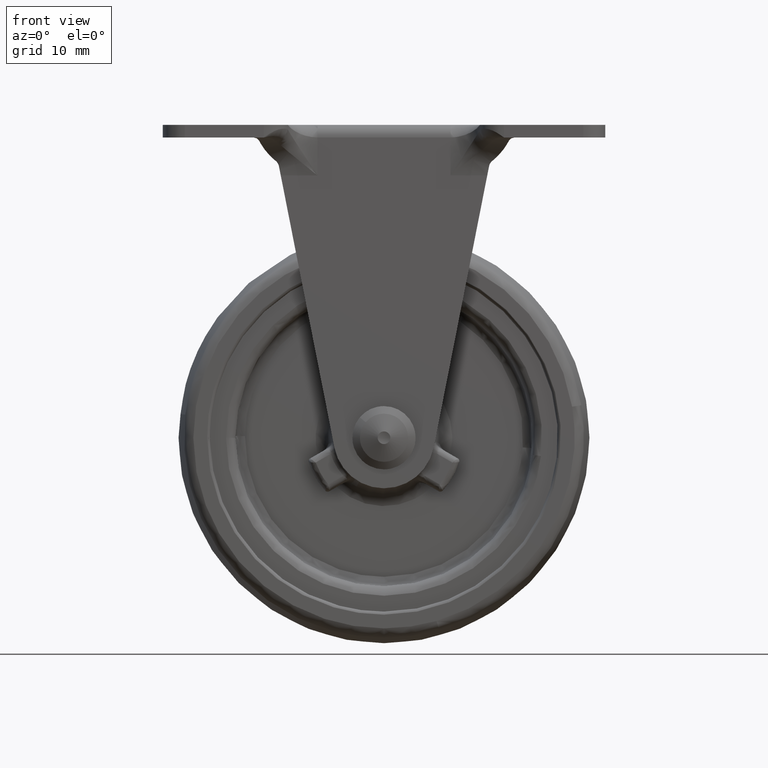
[diagram: clean part render]
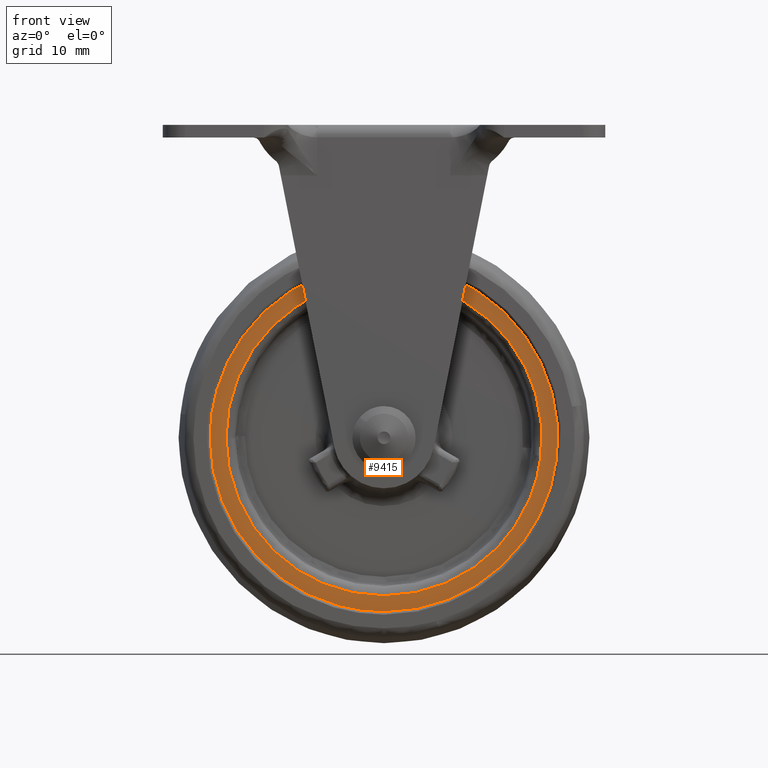
[diagram: same view with one face highlighted and labeled with its STEP entity id]
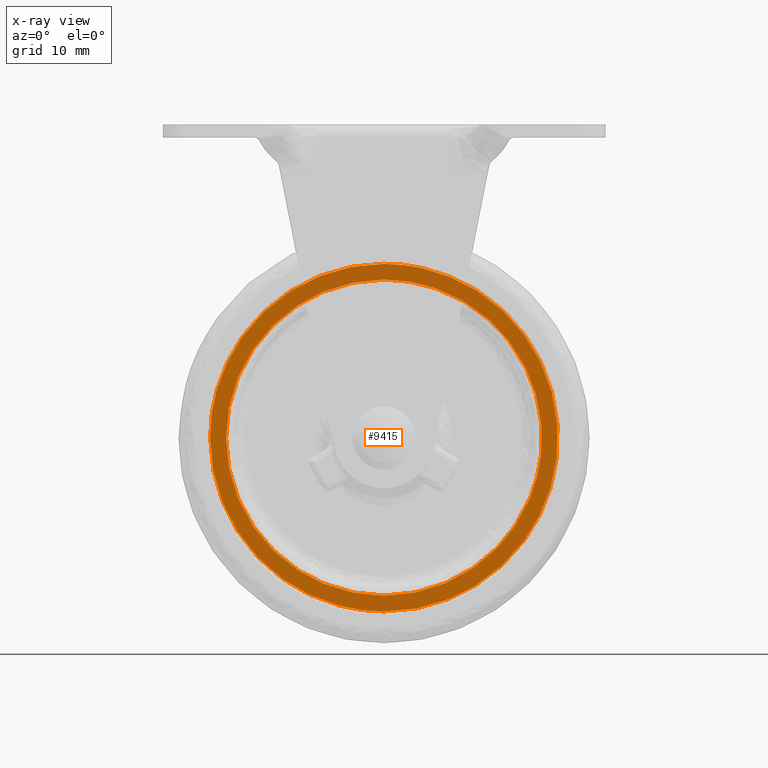
[diagram: x-ray of the same camera — body ghosted, the highlighted face saturated]
A machine part, front view. The second image highlights one B-rep face of the part: STEP entity #9415.
The next image is the same camera in x-ray: the body ghosted, the highlighted face saturated — about 0% of this face is hidden behind the body in this view.
In plain terms, the highlighted face is a freeform B-spline surface patch.
Its self-contained STEP definition (entity closure, byte-faithful):
#2925=CARTESIAN_POINT('',(-51.500002000000002,-10.000000005501560,-47.999996000000003));
#2926=VERTEX_POINT('',#2925);
#2936=CARTESIAN_POINT('',(-24.0,-10.0,-20.499994000000001));
#2937=VERTEX_POINT('',#2936);
#2938=CARTESIAN_POINT('',(-24.0,-10.0,-20.499994000000001));
#2939=CARTESIAN_POINT('',(-26.137397482328659,-9.999999999999881,-20.499465349640801));
#2940=CARTESIAN_POINT('',(-29.399410986405410,-10.000000000076509,-20.882371122145720));
#2941=CARTESIAN_POINT('',(-33.767380248586448,-10.000000000341570,-22.207447710920661));
#2942=CARTESIAN_POINT('',(-36.898896141957167,-10.000000000626210,-23.630187515247730));
#2943=CARTESIAN_POINT('',(-40.112136490016042,-10.000000001022400,-25.610098716940541));
#2944=CARTESIAN_POINT('',(-42.772767844416428,-10.000000001458970,-27.793598452929189));
#2945=CARTESIAN_POINT('',(-45.503407904580392,-10.000000002043709,-30.715057932653259));
#2946=CARTESIAN_POINT('',(-47.778907399541737,-10.000000002689850,-33.945907903825749));
#2947=CARTESIAN_POINT('',(-49.696680668128927,-10.000000003482279,-37.906131817103649));
#2948=CARTESIAN_POINT('',(-51.119246546958742,-10.000000004410129,-42.544295114987037));
#2949=CARTESIAN_POINT('',(-51.500398324272432,-10.000000005096039,-45.975112489243827));
#2950=CARTESIAN_POINT('',(-51.500002000000002,-10.000000005501560,-47.999996000000003));
#2951=B_SPLINE_CURVE_WITH_KNOTS('',3,(#2938,#2939,#2940,#2941,#2942,#2943,#2944,#2945,#2946,#2947,#2948,#2949,#2950),.UNSPECIFIED.,.F.,.U.,(4,1,1,1,1,1,1,1,1,1,4),(0.000000073404337,6.412032767958017,9.786808720742151,13.667807479643240,16.705110898872451,21.092280727205878,23.960775775652792,28.685484471950531,32.903944976721178,37.122421256941472,43.196969891855353),.UNSPECIFIED.);
#2952=EDGE_CURVE('',#2937,#2926,#2951,.T.);
#2954=CARTESIAN_POINT('',(3.316072053205797,-10.000000005374760,-51.175262537485153));
#2955=VERTEX_POINT('',#2954);
#2956=CARTESIAN_POINT('',(3.316072053205797,-10.000000005374760,-51.175262537485153));
#2957=CARTESIAN_POINT('',(3.497478621960052,-10.000000004899910,-49.615650331843760));
#2958=CARTESIAN_POINT('',(3.590274623730488,-10.000000003993300,-46.525874889619423));
#2959=CARTESIAN_POINT('',(2.965560020626035,-10.000000002770230,-42.024400220717951));
#2960=CARTESIAN_POINT('',(1.590129603788719,-10.000000001656110,-37.567197884846770));
#2961=CARTESIAN_POINT('',(-0.444770053546574,-10.000000000759410,-33.567163981659817));
#2962=CARTESIAN_POINT('',(-2.888215282569215,-10.000000000113291,-30.253285798233609));
#2963=CARTESIAN_POINT('',(-5.239425804978747,-9.999999999709170,-27.814308237902399));
#2964=CARTESIAN_POINT('',(-7.987161783389307,-9.999999999402920,-25.538314579531239));
#2965=CARTESIAN_POINT('',(-11.125350922392350,-9.999999999240348,-23.585318439655872));
#2966=CARTESIAN_POINT('',(-14.402394712182019,-9.999999999250496,-22.167127835024498));
#2967=CARTESIAN_POINT('',(-17.466692511972269,-9.999999999372763,-21.231099767434358));
#2968=CARTESIAN_POINT('',(-20.557808284590070,-9.999999999600096,-20.643818264969440));
#2969=CARTESIAN_POINT('',(-22.852599892679208,-9.999999999852095,-20.499956066519079));
#2970=CARTESIAN_POINT('',(-24.0,-10.0,-20.499994000000001));
#2971=B_SPLINE_CURVE_WITH_KNOTS('',3,(#2956,#2957,#2958,#2959,#2960,#2961,#2962,#2963,#2964,#2965,#2966,#2967,#2968,#2969,#2970),.UNSPECIFIED.,.F.,.U.,(4,1,1,1,1,1,1,1,1,1,1,1,4),(0.000000084040359,4.710367094827191,9.239625049476949,13.587711710694469,18.660476503279561,22.646206701214069,25.907215037368431,28.805892849353452,33.335151310525987,36.958557006131841,39.494941211140890,42.937148881141397,46.379350639581382),.UNSPECIFIED.);
#2972=EDGE_CURVE('',#2955,#2937,#2971,.T.);
#3028=CARTESIAN_POINT('',(-24.0,-10.0,-75.499998000000005));
#3029=VERTEX_POINT('',#3028);
#3030=CARTESIAN_POINT('',(-24.0,-10.0,-75.499998000000005));
#3031=CARTESIAN_POINT('',(-22.124293818773921,-9.999999999999920,-75.500301913847963));
#3032=CARTESIAN_POINT('',(-19.154598132383640,-10.000000000067470,-75.194890880498974));
#3033=CARTESIAN_POINT('',(-15.073591801091530,-10.000000000311379,-74.090412529884546));
#3034=CARTESIAN_POINT('',(-11.888521931764901,-10.000000000602730,-72.773022751805939));
#3035=CARTESIAN_POINT('',(-8.627354302229184,-10.000000001015250,-70.905495695127556));
#3036=CARTESIAN_POINT('',(-5.688379415504121,-10.000000001515041,-68.641065131890144));
#3037=CARTESIAN_POINT('',(-2.773895333047190,-10.000000002177000,-65.648734132358172));
#3038=CARTESIAN_POINT('',(-0.581452931131747,-10.000000002853080,-62.587945433253772));
#3039=CARTESIAN_POINT('',(1.257964511481682,-10.000000003629150,-59.074766014270210));
#3040=CARTESIAN_POINT('',(2.589719885523183,-10.000000004431600,-55.444403949233418));
#3041=CARTESIAN_POINT('',(3.147720787331664,-10.000000005054520,-52.624374779154628));
#3042=CARTESIAN_POINT('',(3.316072053205797,-10.000000005374760,-51.175262537485153));
#3043=B_SPLINE_CURVE_WITH_KNOTS('',3,(#3030,#3031,#3032,#3033,#3034,#3035,#3036,#3037,#3038,#3039,#3040,#3041,#3042),.UNSPECIFIED.,.F.,.U.,(4,1,1,1,1,1,1,1,1,1,4),(0.000000065958695,5.627039116920685,8.909497691721171,12.660876840559240,15.943338960415261,20.163555451565429,23.758660660305939,28.447865444376109,31.417706767906790,35.638025351000778,40.014591350734591),.UNSPECIFIED.);
#3044=EDGE_CURVE('',#3029,#2955,#3043,.T.);
#3046=CARTESIAN_POINT('',(-51.500002000000002,-10.000000005501560,-47.999996000000003));
#3047=CARTESIAN_POINT('',(-51.500510731103823,-10.000000005073970,-50.137390160058061));
#3048=CARTESIAN_POINT('',(-51.078063945411976,-10.000000004353840,-53.736873163052742));
#3049=CARTESIAN_POINT('',(-49.532094066393597,-10.000000003398020,-58.514862406601623));
#3050=CARTESIAN_POINT('',(-47.822318947225753,-10.000000002723629,-61.885612494817110));
#3051=CARTESIAN_POINT('',(-45.896328127610673,-10.000000002154650,-64.730049920030964));
#3052=CARTESIAN_POINT('',(-43.959459916754142,-10.000000001699521,-67.003481377648868));
#3053=CARTESIAN_POINT('',(-41.408369734960210,-10.000000001222910,-69.388006109226239));
#3054=CARTESIAN_POINT('',(-38.842456234880231,-10.000000000854049,-71.230705276733005));
#3055=CARTESIAN_POINT('',(-35.932469070013703,-10.000000000533710,-72.832276312873589));
#3056=CARTESIAN_POINT('',(-33.076378323327312,-10.000000000292861,-74.035915274056876));
#3057=CARTESIAN_POINT('',(-29.005775990769958,-10.000000000064770,-75.175978886348929));
#3058=CARTESIAN_POINT('',(-25.912380891226860,-10.000000000000080,-75.500264035095967));
#3059=CARTESIAN_POINT('',(-24.0,-10.0,-75.499998000000005));
#3060=B_SPLINE_CURVE_WITH_KNOTS('',3,(#3046,#3047,#3048,#3049,#3050,#3051,#3052,#3053,#3054,#3055,#3056,#3057,#3058,#3059),.UNSPECIFIED.,.F.,.U.,(4,1,1,1,1,1,1,1,1,1,1,4),(0.000000073350776,6.412032767915129,10.799243282101999,15.017709314609000,17.717545015963339,21.092280727187280,23.960775775639561,28.179267547260501,30.541599854912540,33.916378297669873,37.459890435712467,43.196969891855403),.UNSPECIFIED.);
#3061=EDGE_CURVE('',#2926,#3029,#3060,.T.);
#3113=CARTESIAN_POINT('',(0.832790967559408,-10.0,-50.886601732921037));
#3114=VERTEX_POINT('',#3113);
#3115=CARTESIAN_POINT('',(-24.0,-10.0,-22.999995999999999));
#3116=VERTEX_POINT('',#3115);
#3117=CARTESIAN_POINT('',(0.832790967559408,-10.0,-50.886601732921037));
#3118=CARTESIAN_POINT('',(1.048675552136203,-10.000000000000030,-49.032503462439152));
#3119=CARTESIAN_POINT('',(1.058789850153089,-9.999999999999979,-46.159863066253763));
#3120=CARTESIAN_POINT('',(0.370807037391836,-10.000000000000030,-42.092888432667820));
#3121=CARTESIAN_POINT('',(-0.564432587348556,-9.999999999999963,-39.097216180598707));
#3122=CARTESIAN_POINT('',(-1.873889809161206,-10.000000000000069,-36.250271174657897));
#3123=CARTESIAN_POINT('',(-3.635838842626883,-9.999999999999966,-33.331014241259453));
#3124=CARTESIAN_POINT('',(-5.964904227001126,-10.000000000000160,-30.535262555031920));
#3125=CARTESIAN_POINT('',(-8.575302318448067,-9.999999999999981,-28.254842493104761));
#3126=CARTESIAN_POINT('',(-11.337277301175799,-9.999999999999989,-26.353773459052960));
#3127=CARTESIAN_POINT('',(-14.583322762171409,-10.000000000000011,-24.714050790972721));
#3128=CARTESIAN_POINT('',(-19.004234159261671,-9.999999999999998,-23.347676817264009));
#3129=CARTESIAN_POINT('',(-22.188294387147231,-10.0,-22.999688976607882));
#3130=CARTESIAN_POINT('',(-24.0,-10.0,-22.999995999999999));
#3131=B_SPLINE_CURVE_WITH_KNOTS('',3,(#3117,#3118,#3119,#3120,#3121,#3122,#3123,#3124,#3125,#3126,#3127,#3128,#3129,#3130),.UNSPECIFIED.,.F.,.U.,(4,1,1,1,1,1,1,1,1,1,1,4),(0.000000089416226,5.599763436194671,8.564359132009010,12.352457794113770,14.987651503701720,17.952274506104150,22.563770600815278,25.857782973882799,28.328275241125908,32.610480184946638,36.727971406713813,42.163042968895489),.UNSPECIFIED.);
#3132=EDGE_CURVE('',#3114,#3116,#3131,.T.);
#3134=CARTESIAN_POINT('',(-48.999999996858023,-10.0,-47.999996000000003));
#3135=VERTEX_POINT('',#3134);
#3136=CARTESIAN_POINT('',(-24.0,-10.0,-22.999995999999999));
#3137=CARTESIAN_POINT('',(-25.891942029908090,-10.000000000000041,-22.999618331257931));
#3138=CARTESIAN_POINT('',(-28.755185286601250,-9.999999999999963,-23.326639484302280));
#3139=CARTESIAN_POINT('',(-32.441339360963987,-10.000000000000011,-24.408028335614070));
#3140=CARTESIAN_POINT('',(-35.081088593157013,-10.000000000000030,-25.530024147966241));
#3141=CARTESIAN_POINT('',(-38.066556253741787,-9.999999999999959,-27.221111606247351));
#3142=CARTESIAN_POINT('',(-40.981205010305281,-10.000000000000020,-29.495687100657470));
#3143=CARTESIAN_POINT('',(-43.511583069639627,-9.999999999999682,-32.253566674231777));
#3144=CARTESIAN_POINT('',(-45.302775375645460,-10.000000000000581,-34.813527411941273));
#3145=CARTESIAN_POINT('',(-46.596881432306184,-9.999999999999034,-37.199330974255901));
#3146=CARTESIAN_POINT('',(-47.693999336373260,-10.000000000000520,-39.847988920359157));
#3147=CARTESIAN_POINT('',(-48.700093596203288,-9.999999999999602,-43.398143923913914));
#3148=CARTESIAN_POINT('',(-49.000240233787459,-10.000000000000149,-46.261466531113527));
#3149=CARTESIAN_POINT('',(-48.999999996858023,-10.0,-47.999996000000003));
#3150=B_SPLINE_CURVE_WITH_KNOTS('',3,(#3136,#3137,#3138,#3139,#3140,#3141,#3142,#3143,#3144,#3145,#3146,#3147,#3148,#3149),.UNSPECIFIED.,.F.,.U.,(4,1,1,1,1,1,1,1,1,1,1,4),(0.000000078713121,5.675713931310334,8.590299890750202,11.504884630249061,14.266053018704101,18.868036185063179,22.549516463577639,25.464097540324470,28.225288961312391,30.679665746710480,34.054429911607080,39.269969769508883),.UNSPECIFIED.);
#3151=EDGE_CURVE('',#3116,#3135,#3150,.T.);
#3205=CARTESIAN_POINT('',(-24.0,-10.0,-72.999996000000010));
#3206=VERTEX_POINT('',#3205);
#3207=CARTESIAN_POINT('',(-24.0,-10.0,-72.999996000000010));
#3208=CARTESIAN_POINT('',(-22.957959860237061,-9.999999999999981,-73.000010983182719));
#3209=CARTESIAN_POINT('',(-20.494936435805581,-10.000000000000030,-72.845865769873114));
#3210=CARTESIAN_POINT('',(-16.868655637016410,-10.000000000000011,-72.071856458526298));
#3211=CARTESIAN_POINT('',(-13.369728693972499,-9.999999999999947,-70.716854014000560));
#3212=CARTESIAN_POINT('',(-10.633632683437590,-10.000000000000041,-69.190970766642323));
#3213=CARTESIAN_POINT('',(-7.859442918348723,-9.999999999999977,-67.200613184381865));
#3214=CARTESIAN_POINT('',(-5.450023640644228,-10.000000000000011,-64.903023294637180));
#3215=CARTESIAN_POINT('',(-3.417510743095571,-10.000000000000030,-62.275969868692940));
#3216=CARTESIAN_POINT('',(-1.780102424222957,-9.999999999999936,-59.608666917946742));
#3217=CARTESIAN_POINT('',(-0.123386675448677,-10.000000000000160,-55.925243824189678));
#3218=CARTESIAN_POINT('',(0.614438304063961,-9.999999999999863,-52.768639640971628));
#3219=CARTESIAN_POINT('',(0.832790967559408,-10.0,-50.886601732921037));
#3220=B_SPLINE_CURVE_WITH_KNOTS('',3,(#3207,#3208,#3209,#3210,#3211,#3212,#3213,#3214,#3215,#3216,#3217,#3218,#3219),.UNSPECIFIED.,.F.,.U.,(4,1,1,1,1,1,1,1,1,1,4),(0.000000064858071,3.126130903759773,7.389047861168436,11.083598799229650,14.351825601576801,16.767482630171120,21.314583705863431,24.298617209009720,26.714283425999952,30.693015677713881,36.376898581491517),.UNSPECIFIED.);
#3221=EDGE_CURVE('',#3206,#3114,#3220,.T.);
#3227=CARTESIAN_POINT('',(-48.999999996858023,-10.0,-47.999996000000003));
#3228=CARTESIAN_POINT('',(-49.000028546945202,-9.999999999999972,-49.227167199377433));
#3229=CARTESIAN_POINT('',(-48.796427541821160,-9.999999999999993,-51.988358143226563));
#3230=CARTESIAN_POINT('',(-47.883568158093382,-10.000000000000030,-55.729794884097352));
#3231=CARTESIAN_POINT('',(-46.342761489613110,-9.999999999999972,-59.417533059224269));
#3232=CARTESIAN_POINT('',(-44.672451105306322,-9.999999999999952,-62.184950249251429));
#3233=CARTESIAN_POINT('',(-42.665079434539720,-10.000000000000020,-64.708734320006599));
#3234=CARTESIAN_POINT('',(-40.136901904265322,-9.999999999999906,-67.252977991401650));
#3235=CARTESIAN_POINT('',(-36.872532000514028,-10.000000000000060,-69.581993397658749));
#3236=CARTESIAN_POINT('',(-33.679681152231552,-9.999999999999981,-71.103853509470227));
#3237=CARTESIAN_POINT('',(-30.686250207821690,-10.000000000000011,-72.154325538999572));
#3238=CARTESIAN_POINT('',(-27.630415931416930,-9.999999999999991,-72.830681149252868));
#3239=CARTESIAN_POINT('',(-25.124906679446980,-10.000000000000011,-73.000021206361239));
#3240=CARTESIAN_POINT('',(-24.0,-10.0,-72.999996000000010));
#3241=B_SPLINE_CURVE_WITH_KNOTS('',3,(#3227,#3228,#3229,#3230,#3231,#3232,#3233,#3234,#3235,#3236,#3237,#3238,#3239,#3240),.UNSPECIFIED.,.F.,.U.,(4,1,1,1,1,1,1,1,1,1,1,4),(0.000000078725172,3.681534423660942,8.283505826029874,11.504884630253031,15.646639124839609,17.947639663707040,21.168921552984688,26.384494812541210,29.912673216127772,31.753465849568830,35.895237474816803,39.269969769508869),.UNSPECIFIED.);
#3242=EDGE_CURVE('',#3135,#3206,#3241,.T.);
#9398=CARTESIAN_POINT('',(-54.247246111741219,-10.0,-78.247250158402068));
#9399=CARTESIAN_POINT('',(-54.247246111741219,-10.0,-17.752742333336290));
#9400=CARTESIAN_POINT('',(6.247084535475117,-10.0,-78.247250158402068));
#9401=CARTESIAN_POINT('',(6.247084535475117,-10.0,-17.752742333336290));
#9402=B_SPLINE_SURFACE_WITH_KNOTS('',1,1,((#9398,#9400),(#9399,#9401)),.UNSPECIFIED.,.F.,.F.,.U.,(2,2),(2,2),(0.0,60.494507825065789),(0.0,60.494330647216330),.UNSPECIFIED.);
#9403=ORIENTED_EDGE('',*,*,#3044,.T.);
#9404=ORIENTED_EDGE('',*,*,#2972,.T.);
#9405=ORIENTED_EDGE('',*,*,#2952,.T.);
#9406=ORIENTED_EDGE('',*,*,#3061,.T.);
#9407=EDGE_LOOP('',(#9403,#9404,#9405,#9406));
#9408=FACE_OUTER_BOUND('',#9407,.T.);
#9409=ORIENTED_EDGE('',*,*,#3151,.F.);
#9410=ORIENTED_EDGE('',*,*,#3132,.F.);
#9411=ORIENTED_EDGE('',*,*,#3221,.F.);
#9412=ORIENTED_EDGE('',*,*,#3242,.F.);
#9413=EDGE_LOOP('',(#9409,#9410,#9411,#9412));
#9414=FACE_BOUND('',#9413,.T.);
#9415=ADVANCED_FACE('',(#9408,#9414),#9402,.F.);